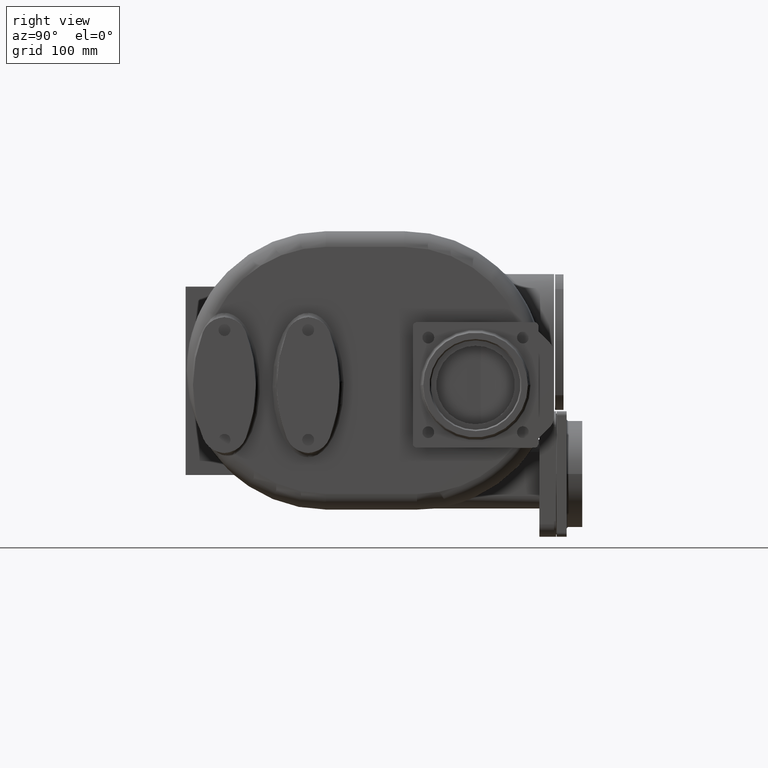
[diagram: clean part render]
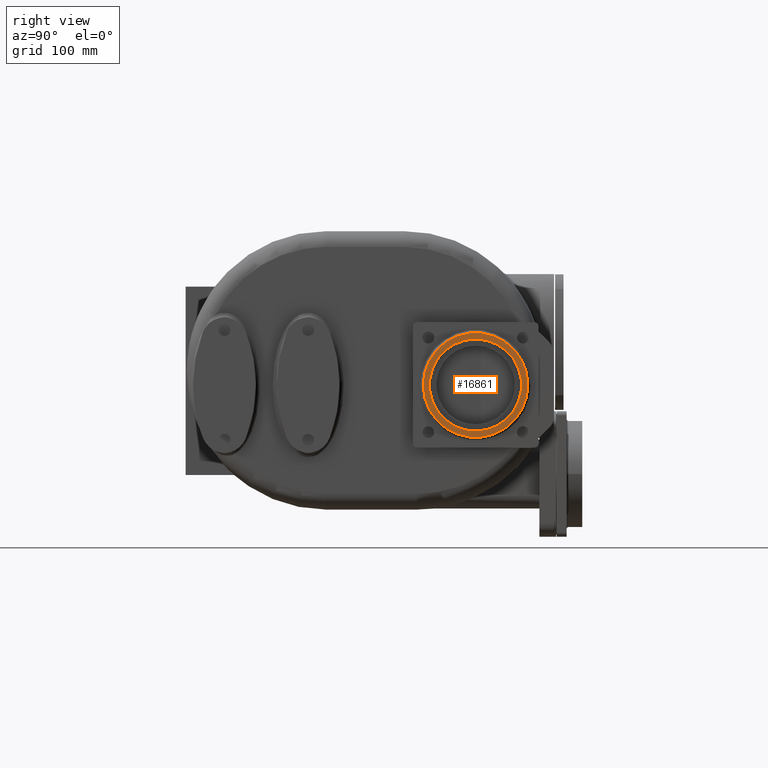
[diagram: same view with one face highlighted and labeled with its STEP entity id]
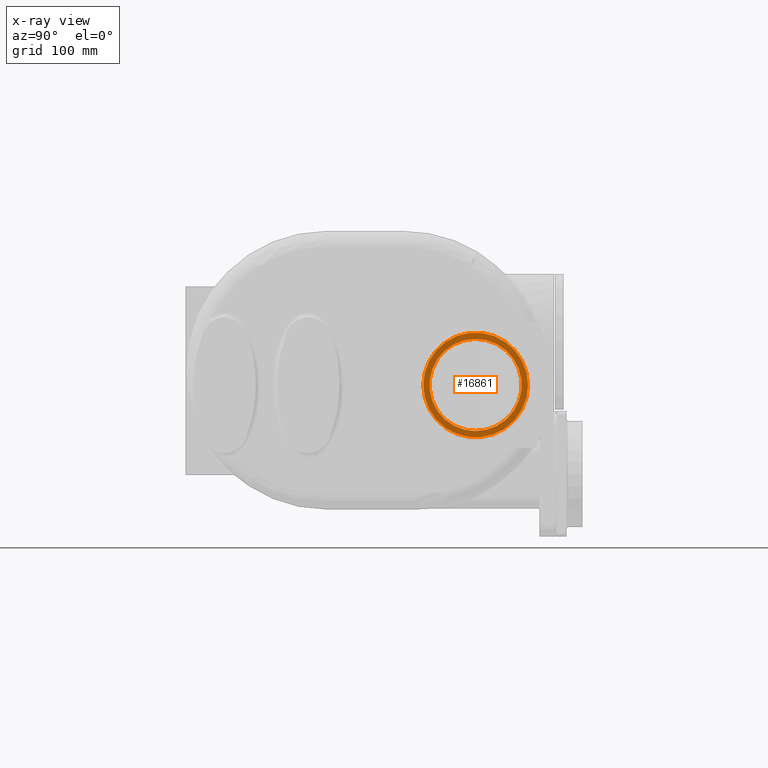
[diagram: x-ray of the same camera — body ghosted, the highlighted face saturated]
A machine part, right view. The second image highlights one B-rep face of the part: STEP entity #16861.
The next image is the same camera in x-ray: the body ghosted, the highlighted face saturated — about 0% of this face is hidden behind the body in this view.
In plain terms, the highlighted planar face has unit normal (1, 0, 0).
Its self-contained STEP definition (entity closure, byte-faithful):
#3199=CARTESIAN_POINT('',(1.55E2,2.77E2,-1.4E1));
#3200=DIRECTION('',(1.E0,0.E0,0.E0));
#3201=DIRECTION('',(0.E0,-1.E0,0.E0));
#3202=AXIS2_PLACEMENT_3D('',#3199,#3200,#3201);
#3204=CARTESIAN_POINT('',(1.55E2,2.77E2,-1.4E1));
#3205=DIRECTION('',(1.E0,0.E0,0.E0));
#3206=DIRECTION('',(0.E0,1.E0,0.E0));
#3207=AXIS2_PLACEMENT_3D('',#3204,#3205,#3206);
#3209=CARTESIAN_POINT('',(1.55E2,2.77E2,-1.4E1));
#3210=DIRECTION('',(1.E0,0.E0,0.E0));
#3211=DIRECTION('',(0.E0,0.E0,-1.E0));
#3212=AXIS2_PLACEMENT_3D('',#3209,#3210,#3211);
#3214=CARTESIAN_POINT('',(1.55E2,2.77E2,-1.4E1));
#3215=DIRECTION('',(1.E0,0.E0,0.E0));
#3216=DIRECTION('',(0.E0,0.E0,1.E0));
#3217=AXIS2_PLACEMENT_3D('',#3214,#3215,#3216);
#11260=CARTESIAN_POINT('',(1.55E2,2.27E2,-1.4E1));
#11261=CARTESIAN_POINT('',(1.55E2,3.27E2,-1.4E1));
#11262=VERTEX_POINT('',#11260);
#11263=VERTEX_POINT('',#11261);
#11272=CARTESIAN_POINT('',(1.55E2,2.77E2,-5.8E1));
#11273=CARTESIAN_POINT('',(1.55E2,2.77E2,3.E1));
#11274=VERTEX_POINT('',#11272);
#11275=VERTEX_POINT('',#11273);
#16845=CARTESIAN_POINT('',(1.55E2,2.77E2,-1.4E1));
#16846=DIRECTION('',(1.E0,0.E0,0.E0));
#16847=DIRECTION('',(0.E0,0.E0,-1.E0));
#16848=AXIS2_PLACEMENT_3D('',#16845,#16846,#16847);
#16849=PLANE('',#16848);
#16850=ORIENTED_EDGE('',*,*,#16835,.F.);
#16852=ORIENTED_EDGE('',*,*,#16851,.F.);
#16853=EDGE_LOOP('',(#16850,#16852));
#16854=FACE_OUTER_BOUND('',#16853,.F.);
#16856=ORIENTED_EDGE('',*,*,#16855,.T.);
#16858=ORIENTED_EDGE('',*,*,#16857,.T.);
#16859=EDGE_LOOP('',(#16856,#16858));
#16860=FACE_BOUND('',#16859,.F.);
#16861=ADVANCED_FACE('',(#16854,#16860),#16849,.T.);
#3203=CIRCLE('',#3202,5.E1);
#3208=CIRCLE('',#3207,5.E1);
#3213=CIRCLE('',#3212,4.4E1);
#3218=CIRCLE('',#3217,4.4E1);
#16835=EDGE_CURVE('',#11262,#11263,#3203,.T.);
#16851=EDGE_CURVE('',#11263,#11262,#3208,.T.);
#16855=EDGE_CURVE('',#11274,#11275,#3213,.T.);
#16857=EDGE_CURVE('',#11275,#11274,#3218,.T.);